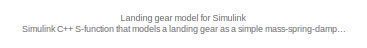
[diagram: root canvas - part 1/2, top left region]
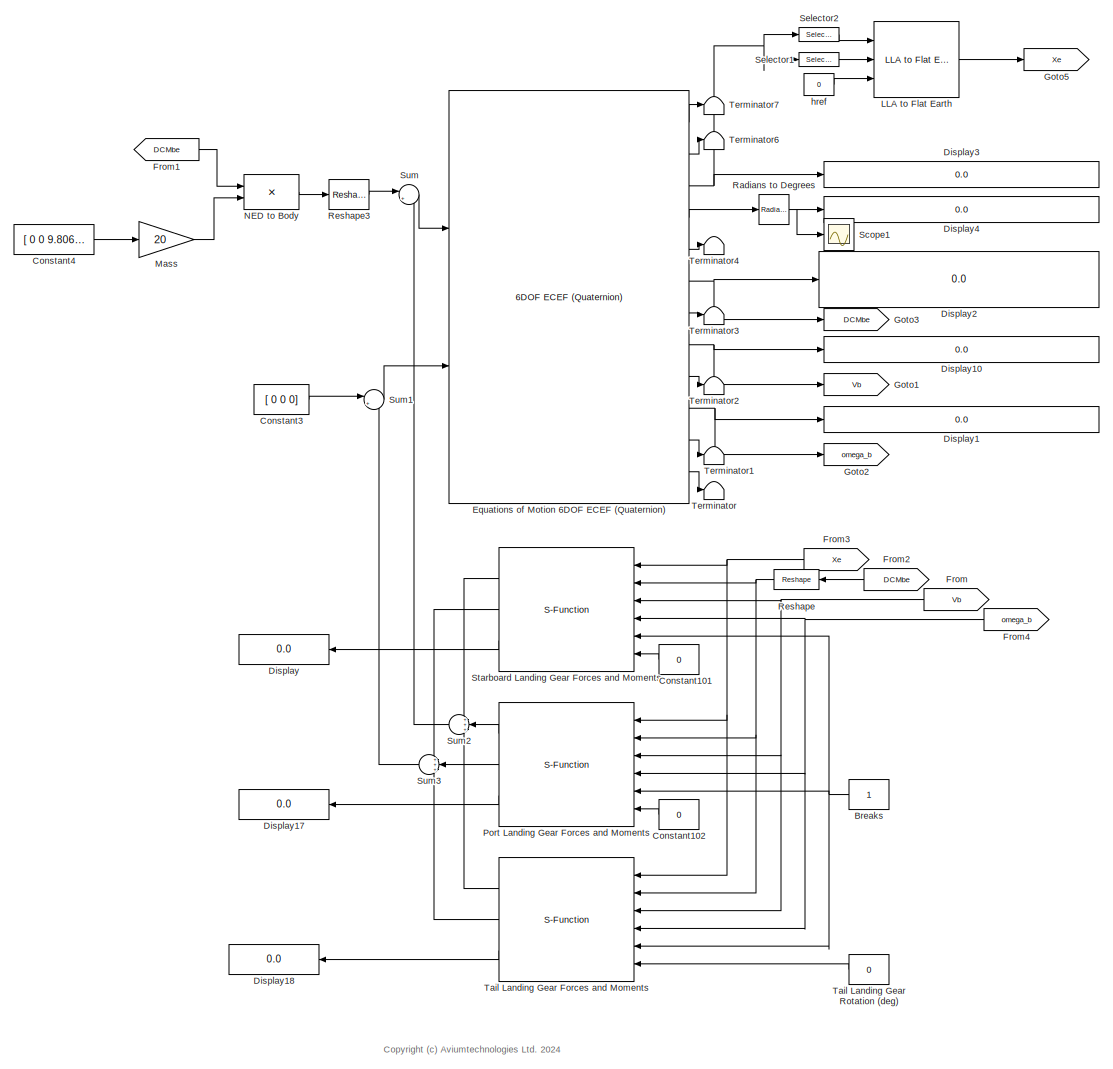
[diagram: root canvas - part 2/2, most of the canvas]
MODEL slx_81f9d6997084
KIND model
CONFIG AbsTol = auto
CONFIG EnableMultiTasking = off
CONFIG FixedStep = 1e-4
CONFIG MaxStep = auto
CONFIG MinStep = auto
CONFIG RelTol = 1e-3
CONFIG SampleTimeConstraint = Unconstrained
CONFIG SolverName = ode4
CONFIG StartTime = 0.0
CONFIG StopTime = 60
BLOCK [Constant] Breaks
  NameLocation = top
BLOCK [Constant] Constant101
  NameLocation = top
  Value = 0
BLOCK [Constant] Constant102
  NameLocation = top
  Value = 0
BLOCK [Constant] Constant3
  Value = [ 0 0 0]
BLOCK [Constant] Constant4
  Value = [ 0 0 9.80665]
BLOCK [Display] Display
  Decimation = 1
  NameLocation = top
  Ports = [1]
BLOCK [Display] Display1
  Decimation = 1
  Ports = [1]
BLOCK [Display] Display10
  Decimation = 1
  Ports = [1]
BLOCK [Display] Display17
  Decimation = 1
  NameLocation = top
  Ports = [1]
BLOCK [Display] Display18
  Decimation = 1
  NameLocation = top
  Ports = [1]
BLOCK [Display] Display2
  Decimation = 1
  Ports = [1]
BLOCK [Display] Display3
  Decimation = 1
  Ports = [1]
BLOCK [Display] Display4
  Decimation = 1
  Ports = [1]
BLOCK [Reference] Equations of Motion 6DOF ECEF (Quaternion)  REF=aerolib6dof2/6DOF ECEF (Quaternion)
  Ports = [2, 12]
  SourceBlock = aerolib6dof2/6DOF ECEF (Quaternion)
  SourceProductBaseCode = AE
  SourceType = 6DOF EoM (ECEF)
BLOCK [From] From
  GotoTag = Vb
  NameLocation = top
BLOCK [From] From1
  GotoTag = DCMbe
BLOCK [From] From2
  GotoTag = DCMbe
  NameLocation = top
BLOCK [From] From3
  GotoTag = Xe
  NameLocation = top
BLOCK [From] From4
  GotoTag = omega_b
  NameLocation = top
BLOCK [Goto] Goto1
  GotoTag = Vb
BLOCK [Goto] Goto2
  GotoTag = omega_b
BLOCK [Goto] Goto3
  GotoTag = DCMbe
BLOCK [Goto] Goto5
  GotoTag = Xe
  NameLocation = top
BLOCK [Reference] LLA to Flat Earth   REF=aerolibtransform2/LLA to Flat Earth
  Ports = [3, 1]
  SourceBlock = aerolibtransform2/LLA to Flat Earth
  SourceProductBaseCode = AE
  SourceType = LLA to Flat Earth
BLOCK [Gain] Mass
  Gain = 20
  OutDataTypeStr = Inherit: Same as input
  ParamDataTypeStr = Inherit: Same as input
  SaturateOnIntegerOverflow = on
BLOCK [Product] NED to Body
  InputSameDT = on
  Multiplication = Matrix(*)
  OutDataTypeStr = Inherit: Same as first input
  Ports = [2, 1]
  SaturateOnIntegerOverflow = on
BLOCK [S-Function] Port Landing Gear Forces and Moments
  EnableBusSupport = off
  FunctionName = landing_gear_forces_and_moments
  Parameters = Xcg,Xg,dz_max,k,c,mus,mud,mur
  Ports = [6, 3]
  SFcnIsStateOwnerBlock = off
  SFunctionDeploymentMode = off
BLOCK [Reference] Radians to Degrees  REF=simulink_extras/Transformations/Radians
to Degrees
  Ports = [1, 1]
  SourceBlock = simulink_extras/Transformations/Radians\nto Degrees
  SourceProductBaseCode = SL
  SourceType = RadiansToDegrees
BLOCK [Reshape] Reshape
  Ports = [1, 1]
BLOCK [Reshape] Reshape3
  Ports = [1, 1]
BLOCK [Scope] Scope1
  Floating = off
  NumInputPorts = 1
  Ports = [1]
  ScopeSpecificationString = Simulink.scopes.TimeScopeBlockCfg('CurrentConfiguration', extmgr.ConfigurationSet(extmgr.Configuration('Core','General UI',true),extmgr.Configuration('Core','Source UI',true),extmgr.Configuration('Sources','WiredSimulink',true,'DataLoggingVariableName','ScopeData1'),extmgr.Configuration('Visuals','Time Domain',true,'SerializedDisplays',{struct('MinYLimReal','-0.60556','MaxYLimReal','5.44858','YLab...<+1502ch>
BLOCK [Selector] Selector1
  IndexMode = Zero-based
  IndexOptions = Starting index (dialog)
  Indices = 2
  InputPortWidth = 3
  OutputSizes = 1
  Ports = [1, 1]
BLOCK [Selector] Selector2
  IndexMode = Zero-based
  IndexOptions = Index vector (dialog)
  Indices = [ 0 1 ]
  InputPortWidth = 3
  OutputSizes = 1
  Ports = [1, 1]
BLOCK [S-Function] Starboard Landing Gear Forces and Moments
  EnableBusSupport = off
  FunctionName = landing_gear_forces_and_moments
  Parameters = Xcg,Xg,dz_max,k,c,mus,mud,mur
  Ports = [6, 3]
  SFcnIsStateOwnerBlock = off
  SFunctionDeploymentMode = off
BLOCK [Sum] Sum
  Inputs = |++
  Ports = [2, 1]
BLOCK [Sum] Sum1
  Inputs = |++
  Ports = [2, 1]
BLOCK [Sum] Sum2
  Inputs = +++
  NameLocation = top
  Ports = [3, 1]
BLOCK [Sum] Sum3
  Inputs = +++
  NameLocation = top
  Ports = [3, 1]
BLOCK [S-Function] Tail Landing Gear Forces and Moments
  EnableBusSupport = off
  FunctionName = landing_gear_forces_and_moments
  Parameters = Xcg,Xg,dz_max,k,c,mus,mud,mur
  Ports = [6, 3]
  SFcnIsStateOwnerBlock = off
  SFunctionDeploymentMode = off
BLOCK [Constant] Tail Landing Gear Rotation (deg)
  NameLocation = top
  Value = 0
BLOCK [Terminator] Terminator
BLOCK [Terminator] Terminator1
BLOCK [Terminator] Terminator2
BLOCK [Terminator] Terminator3
BLOCK [Terminator] Terminator4
BLOCK [Terminator] Terminator6
BLOCK [Terminator] Terminator7
BLOCK [Constant] href
  Value = 0
ANNOTATION (root): Landing gear model for Simulink Simulink C++ S-function that models a landing gear as a simple mass-spring-damper system.
ANNOTATION (root): <copyright redacted>
NET Breaks:1 -> Port Landing Gear Forces and Moments:5, Starboard Landing Gear Forces and Moments:5, Tail Landing Gear Forces and Moments:5
LINE Constant101:1 -> Starboard Landing Gear Forces and Moments:6
LINE Constant102:1 -> Port Landing Gear Forces and Moments:6
LINE Constant3:1 -> Sum1:1
LINE Constant4:1 -> Mass:1
LINE Equations of Motion 6DOF ECEF (Quaternion):1 -> Terminator7:1
NET Equations of Motion 6DOF ECEF (Quaternion):10 -> Display1:1, Goto2:1
LINE Equations of Motion 6DOF ECEF (Quaternion):11 -> Terminator1:1
LINE Equations of Motion 6DOF ECEF (Quaternion):12 -> Terminator:1
LINE Equations of Motion 6DOF ECEF (Quaternion):2 -> Terminator6:1
NET Equations of Motion 6DOF ECEF (Quaternion):3 -> Display3:1, Selector1:1, Selector2:1
LINE Equations of Motion 6DOF ECEF (Quaternion):4 -> Radians to Degrees:1
LINE Equations of Motion 6DOF ECEF (Quaternion):5 -> Terminator4:1
NET Equations of Motion 6DOF ECEF (Quaternion):6 -> Display2:1, Goto3:1
LINE Equations of Motion 6DOF ECEF (Quaternion):7 -> Terminator3:1
NET Equations of Motion 6DOF ECEF (Quaternion):8 -> Display10:1, Goto1:1
LINE Equations of Motion 6DOF ECEF (Quaternion):9 -> Terminator2:1
LINE From1:1 -> NED to Body:1
LINE From2:1 -> Reshape:1
NET From3:1 -> Port Landing Gear Forces and Moments:1, Starboard Landing Gear Forces and Moments:1, Tail Landing Gear Forces and Moments:1
NET From4:1 -> Port Landing Gear Forces and Moments:4, Starboard Landing Gear Forces and Moments:4, Tail Landing Gear Forces and Moments:4
NET From:1 -> Port Landing Gear Forces and Moments:3, Starboard Landing Gear Forces and Moments:3, Tail Landing Gear Forces and Moments:3
LINE LLA to Flat Earth :1 -> Goto5:1
LINE Mass:1 -> NED to Body:2
LINE NED to Body:1 -> Reshape3:1
LINE Port Landing Gear Forces and Moments:1 -> Sum2:2
LINE Port Landing Gear Forces and Moments:2 -> Sum3:2
LINE Port Landing Gear Forces and Moments:3 -> Display17:1
NET Radians to Degrees:1 -> Display4:1, Scope1:1
LINE Reshape3:1 -> Sum:1
NET Reshape:1 -> Port Landing Gear Forces and Moments:2, Starboard Landing Gear Forces and Moments:2, Tail Landing Gear Forces and Moments:2
LINE Selector1:1 -> LLA to Flat Earth :2
LINE Selector2:1 -> LLA to Flat Earth :1
LINE Starboard Landing Gear Forces and Moments:1 -> Sum2:1
LINE Starboard Landing Gear Forces and Moments:2 -> Sum3:1
LINE Starboard Landing Gear Forces and Moments:3 -> Display:1
LINE Sum1:1 -> Equations of Motion 6DOF ECEF (Quaternion):2
LINE Sum2:1 -> Sum:2
LINE Sum3:1 -> Sum1:2
LINE Sum:1 -> Equations of Motion 6DOF ECEF (Quaternion):1
LINE Tail Landing Gear Forces and Moments:1 -> Sum2:3
LINE Tail Landing Gear Forces and Moments:2 -> Sum3:3
LINE Tail Landing Gear Forces and Moments:3 -> Display18:1
LINE Tail Landing Gear Rotation (deg):1 -> Tail Landing Gear Forces and Moments:6
LINE href:1 -> LLA to Flat Earth :3
note: NET lines group one-source signal fan-out (src -> all destinations, sorted); 1:1 wires keep LINE
